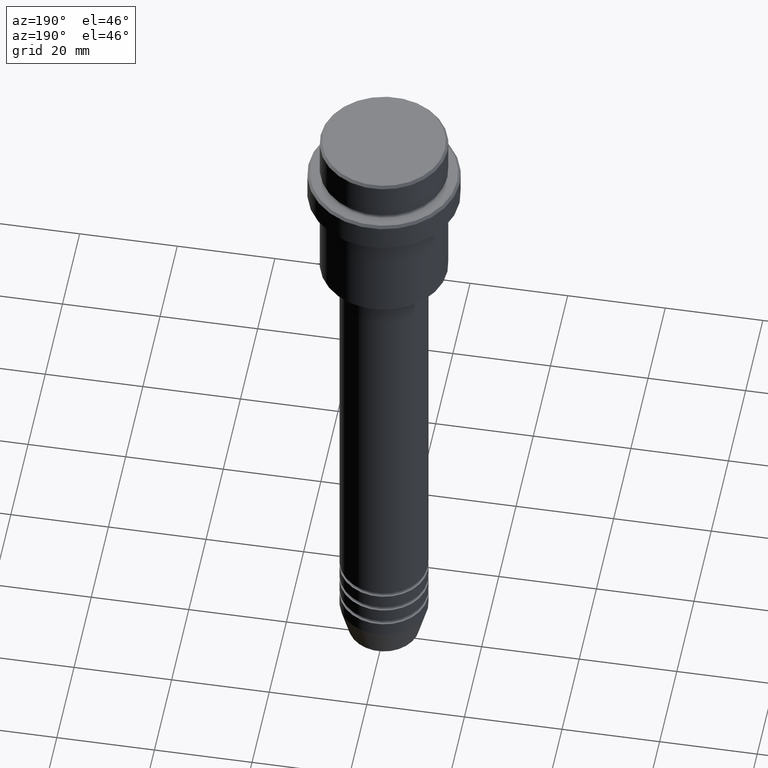
[diagram: clean part render]
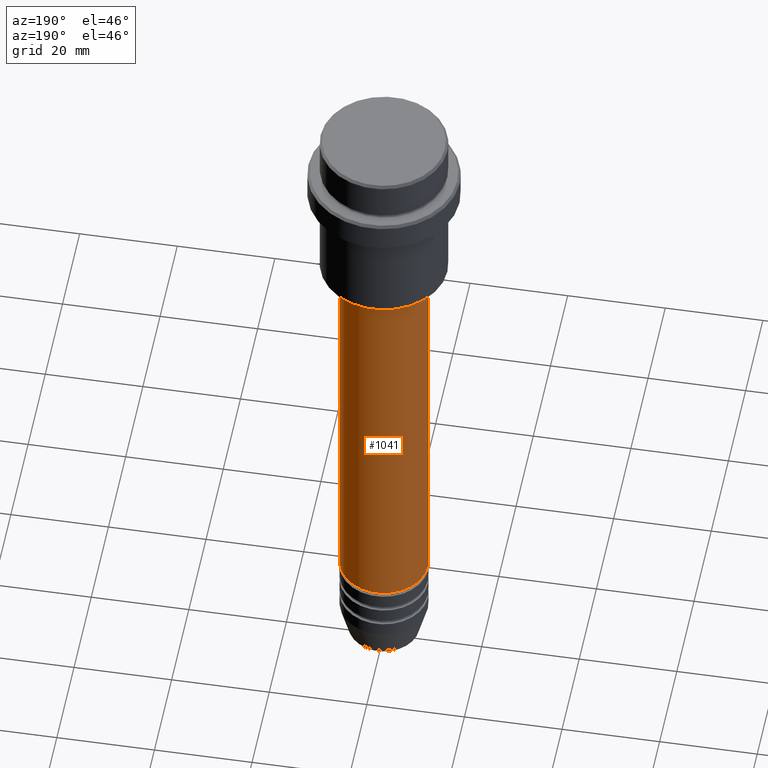
[diagram: same view with one face highlighted and labeled with its STEP entity id]
A machine part, auxiliary view. The second image highlights one B-rep face of the part: STEP entity #1041.
In plain terms, the highlighted cylindrical surface (partial cylindrical patch) has radius 9 mm, axis along (-0, -0, 1).
Its self-contained STEP definition (entity closure, byte-faithful):
#12 = AXIS2_PLACEMENT_3D ( 'NONE', #714, #705, #39 ) ;
#19 = ORIENTED_EDGE ( 'NONE', *, *, #944, .T. ) ;
#39 = DIRECTION ( 'NONE',  ( 1.000000000000000000, 0.000000000000000000, 0.000000000000000000 ) ) ;
#75 = CARTESIAN_POINT ( 'NONE',  ( 9.000000000000000000, 0.000000000000000000, -121.9999999999998721 ) ) ;
#99 = FACE_OUTER_BOUND ( 'NONE', #1270, .T. ) ;
#124 = CIRCLE ( 'NONE', #229, 9.000000000000000000 ) ;
#229 = AXIS2_PLACEMENT_3D ( 'NONE', #726, #632, #506 ) ;
#266 = LINE ( 'NONE', #1032, #296 ) ;
#296 = VECTOR ( 'NONE', #619, 1000.000000000000000 ) ;
#302 = CARTESIAN_POINT ( 'NONE',  ( -9.000000000000001776, 1.102182119232617911E-15, -36.99999999999999289 ) ) ;
#349 = DIRECTION ( 'NONE',  ( -0.000000000000000000, -0.000000000000000000, 1.000000000000000000 ) ) ;
#455 = CIRCLE ( 'NONE', #12, 9.000000000000001776 ) ;
#459 = CYLINDRICAL_SURFACE ( 'NONE', #1173, 9.000000000000001776 ) ;
#477 = CARTESIAN_POINT ( 'NONE',  ( -9.000000000000000000, 1.102182119232617714E-15, -121.9999999999998721 ) ) ;
#498 = VERTEX_POINT ( 'NONE', #75 ) ;
#506 = DIRECTION ( 'NONE',  ( 1.000000000000000000, 0.000000000000000000, 0.000000000000000000 ) ) ;
#619 = DIRECTION ( 'NONE',  ( -0.000000000000000000, -0.000000000000000000, 1.000000000000000000 ) ) ;
#632 = DIRECTION ( 'NONE',  ( -0.000000000000000000, -0.000000000000000000, 1.000000000000000000 ) ) ;
#645 = CARTESIAN_POINT ( 'NONE',  ( -9.000000000000001776, 1.102182119232617911E-15, 0.000000000000000000 ) ) ;
#657 = CARTESIAN_POINT ( 'NONE',  ( 0.000000000000000000, 0.000000000000000000, 0.000000000000000000 ) ) ;
#679 = DIRECTION ( 'NONE',  ( 1.000000000000000000, 0.000000000000000000, 0.000000000000000000 ) ) ;
#704 = EDGE_CURVE ( 'NONE', #498, #1258, #266, .T. ) ;
#705 = DIRECTION ( 'NONE',  ( -0.000000000000000000, -0.000000000000000000, 1.000000000000000000 ) ) ;
#714 = CARTESIAN_POINT ( 'NONE',  ( 0.000000000000000000, 0.000000000000000000, -36.99999999999999289 ) ) ;
#726 = CARTESIAN_POINT ( 'NONE',  ( 0.000000000000000000, 0.000000000000000000, -121.9999999999998721 ) ) ;
#733 = ORIENTED_EDGE ( 'NONE', *, *, #704, .F. ) ;
#745 = EDGE_CURVE ( 'NONE', #1258, #1392, #455, .T. ) ;
#859 = LINE ( 'NONE', #645, #1036 ) ;
#944 = EDGE_CURVE ( 'NONE', #1130, #1392, #859, .T. ) ;
#964 = DIRECTION ( 'NONE',  ( -0.000000000000000000, -0.000000000000000000, 1.000000000000000000 ) ) ;
#1032 = CARTESIAN_POINT ( 'NONE',  ( 9.000000000000001776, 0.000000000000000000, 0.000000000000000000 ) ) ;
#1036 = VECTOR ( 'NONE', #964, 1000.000000000000000 ) ;
#1041 = ADVANCED_FACE ( 'NONE', ( #99 ), #459, .T. ) ;
#1130 = VERTEX_POINT ( 'NONE', #477 ) ;
#1140 = CARTESIAN_POINT ( 'NONE',  ( 9.000000000000001776, 0.000000000000000000, -36.99999999999999289 ) ) ;
#1173 = AXIS2_PLACEMENT_3D ( 'NONE', #657, #349, #679 ) ;
#1198 = ORIENTED_EDGE ( 'NONE', *, *, #745, .F. ) ;
#1258 = VERTEX_POINT ( 'NONE', #1140 ) ;
#1270 = EDGE_LOOP ( 'NONE', ( #1287, #19, #1198, #733 ) ) ;
#1276 = EDGE_CURVE ( 'NONE', #498, #1130, #124, .T. ) ;
#1287 = ORIENTED_EDGE ( 'NONE', *, *, #1276, .T. ) ;
#1392 = VERTEX_POINT ( 'NONE', #302 ) ;